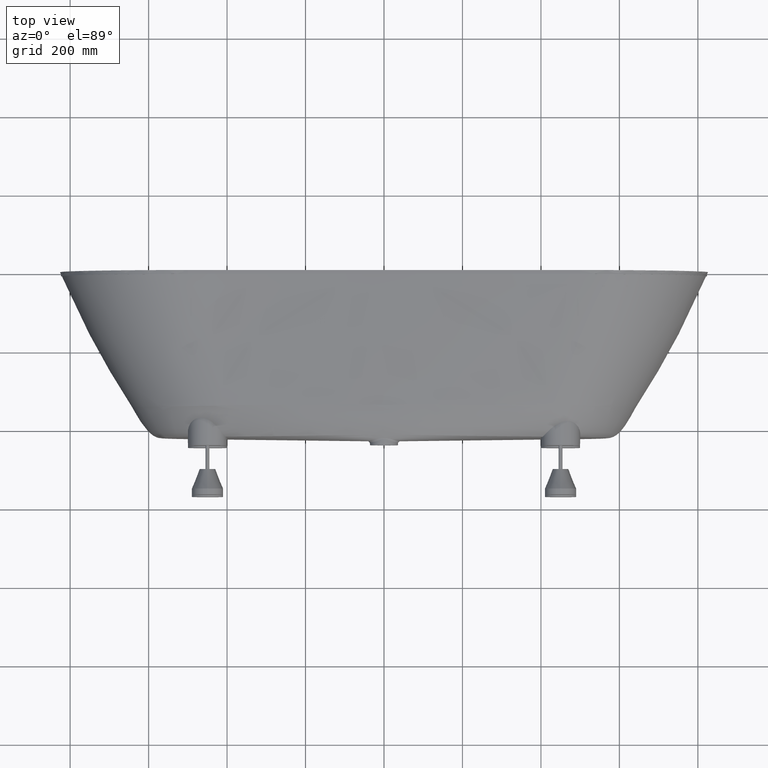
[diagram: clean part render]
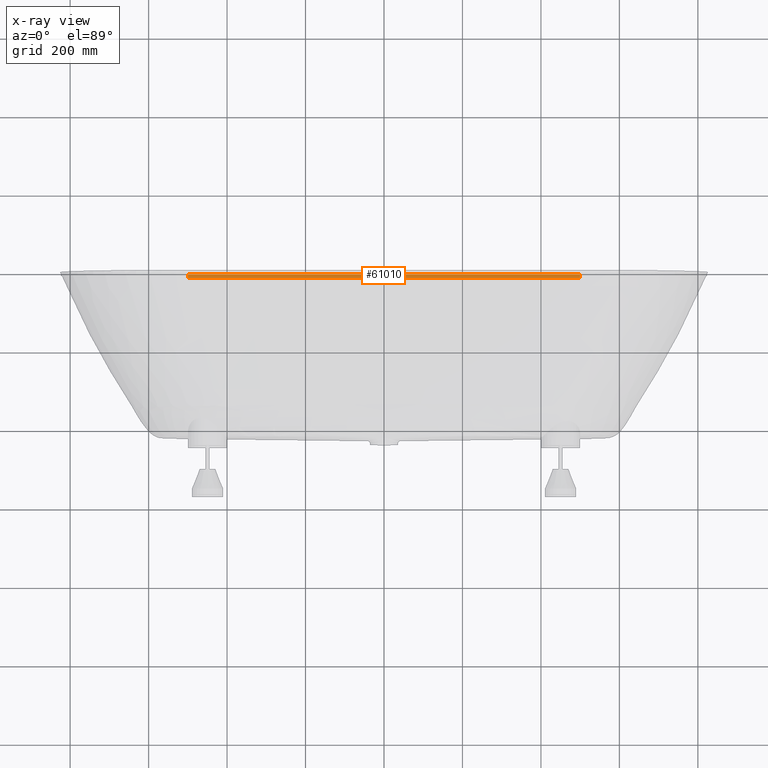
[diagram: x-ray — body ghosted, one internal face saturated and labeled with its STEP entity id]
A machine part, top view, then the same camera in x-ray: the body is ghosted and one INTERNAL B-rep face — a face not visible from any outside direction — is saturated and labeled: STEP entity #61010.
In plain terms, the highlighted planar face has unit normal (-0, 0, -1).
Its self-contained STEP definition (entity closure, byte-faithful):
#3615 = ORIENTED_EDGE ( 'NONE', *, *, #54948, .T. ) ;
#4037 = LINE ( 'NONE', #19379, #5314 ) ;
#5314 = VECTOR ( 'NONE', #29716, 1000.000000000000000 ) ;
#6590 = CARTESIAN_POINT ( 'NONE',  ( -500.0000000000000000, -10.00000000000000000, -314.9999999999999400 ) ) ;
#8093 = FACE_OUTER_BOUND ( 'NONE', #60238, .T. ) ;
#8487 = CARTESIAN_POINT ( 'NONE',  ( 499.9999999999998900, -10.00000000000000000, -315.0000000000001100 ) ) ;
#9693 = VERTEX_POINT ( 'NONE', #28458 ) ;
#10351 = VECTOR ( 'NONE', #47725, 1000.000000000000000 ) ;
#11788 = CARTESIAN_POINT ( 'NONE',  ( 499.9999999999998900, -10.00000000000000000, -315.0000000000001100 ) ) ;
#12125 = ORIENTED_EDGE ( 'NONE', *, *, #59848, .F. ) ;
#12361 = DIRECTION ( 'NONE',  ( -1.665334536937735300E-016, 0.0000000000000000000, -1.000000000000000000 ) ) ;
#18507 = EDGE_CURVE ( 'NONE', #37674, #43543, #58508, .T. ) ;
#19379 = CARTESIAN_POINT ( 'NONE',  ( -500.0000000000000000, -10.00000000000000000, -314.9999999999999400 ) ) ;
#23076 = ORIENTED_EDGE ( 'NONE', *, *, #18507, .F. ) ;
#25240 = AXIS2_PLACEMENT_3D ( 'NONE', #6590, #12361, #49184 ) ;
#28458 = CARTESIAN_POINT ( 'NONE',  ( 499.9999999999998900, 0.0000000000000000000, -315.0000000000001100 ) ) ;
#29716 = DIRECTION ( 'NONE',  ( -1.000000000000000000, -0.0000000000000000000, 1.665334536937735300E-016 ) ) ;
#29793 = VECTOR ( 'NONE', #48614, 1000.000000000000000 ) ;
#33156 = CARTESIAN_POINT ( 'NONE',  ( -500.0000000000000000, 0.0000000000000000000, -314.9999999999999400 ) ) ;
#33388 = VERTEX_POINT ( 'NONE', #8487 ) ;
#35481 = EDGE_CURVE ( 'NONE', #33388, #9693, #42134, .T. ) ;
#37674 = VERTEX_POINT ( 'NONE', #54849 ) ;
#40060 = DIRECTION ( 'NONE',  ( -1.000000000000000000, -0.0000000000000000000, 1.665334536937735300E-016 ) ) ;
#42134 = LINE ( 'NONE', #11788, #29793 ) ;
#43543 = VERTEX_POINT ( 'NONE', #33156 ) ;
#47725 = DIRECTION ( 'NONE',  ( 0.0000000000000000000, 1.000000000000000000, 0.0000000000000000000 ) ) ;
#48104 = CARTESIAN_POINT ( 'NONE',  ( -500.0000000000000000, -10.00000000000000000, -314.9999999999999400 ) ) ;
#48614 = DIRECTION ( 'NONE',  ( 0.0000000000000000000, 1.000000000000000000, 0.0000000000000000000 ) ) ;
#49184 = DIRECTION ( 'NONE',  ( -1.000000000000000000, 0.0000000000000000000, 1.665334536937735300E-016 ) ) ;
#54002 = LINE ( 'NONE', #60966, #66915 ) ;
#54849 = CARTESIAN_POINT ( 'NONE',  ( -500.0000000000000000, -10.00000000000000000, -314.9999999999999400 ) ) ;
#54948 = EDGE_CURVE ( 'NONE', #9693, #43543, #54002, .T. ) ;
#58508 = LINE ( 'NONE', #48104, #10351 ) ;
#59848 = EDGE_CURVE ( 'NONE', #33388, #37674, #4037, .T. ) ;
#60016 = ORIENTED_EDGE ( 'NONE', *, *, #35481, .T. ) ;
#60238 = EDGE_LOOP ( 'NONE', ( #3615, #23076, #12125, #60016 ) ) ;
#60966 = CARTESIAN_POINT ( 'NONE',  ( -500.0000000000000000, 0.0000000000000000000, -314.9999999999999400 ) ) ;
#61010 = ADVANCED_FACE ( 'NONE', ( #8093 ), #64781, .F. ) ;
#64781 = PLANE ( 'NONE',  #25240 ) ;
#66915 = VECTOR ( 'NONE', #40060, 1000.000000000000000 ) ;